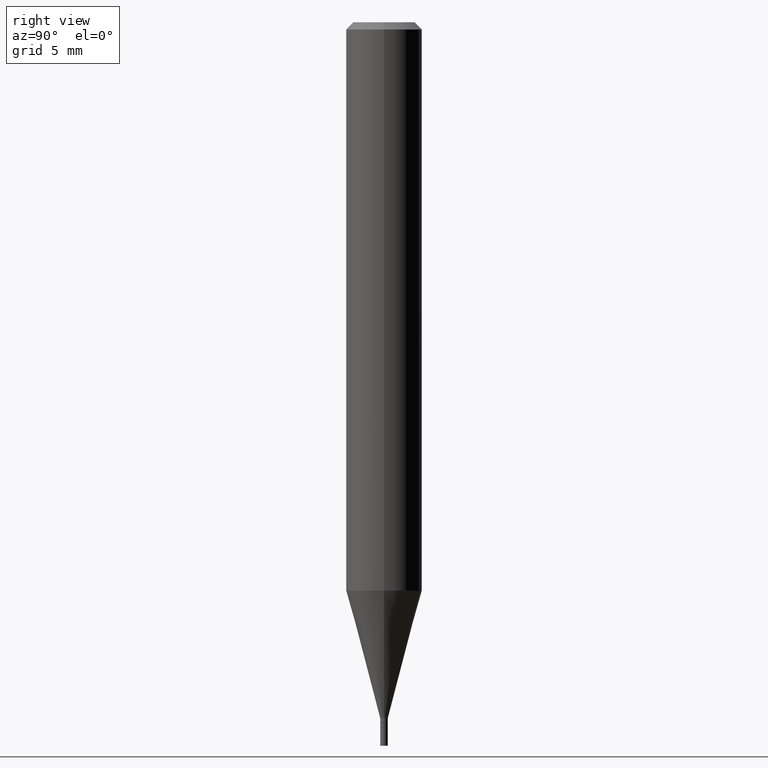
[diagram: clean part render]
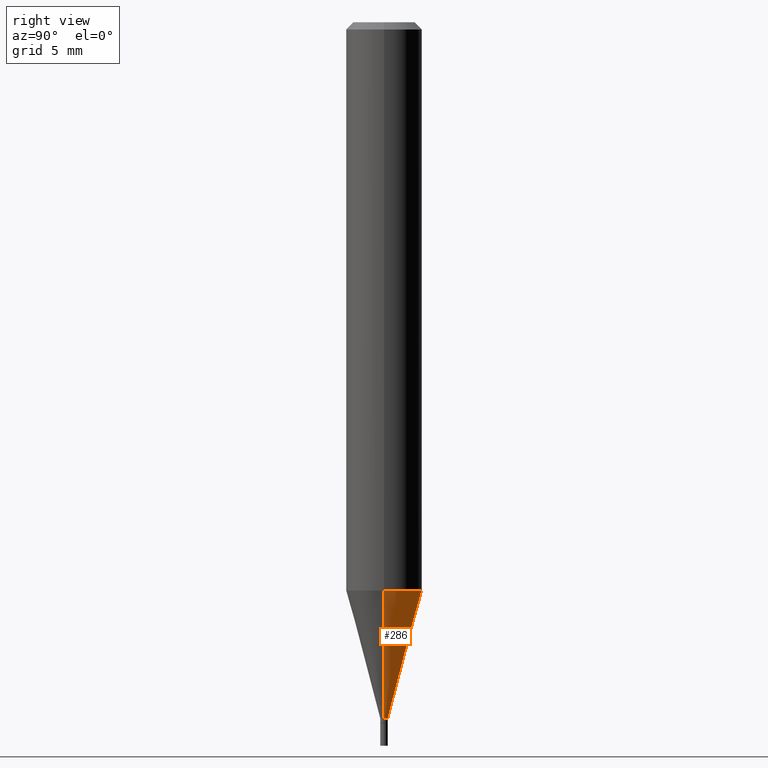
[diagram: same view with one face highlighted and labeled with its STEP entity id]
A machine part, right view. The second image highlights one B-rep face of the part: STEP entity #286.
In plain terms, the highlighted conical surface has half-angle 15 deg.
Its self-contained STEP definition (entity closure, byte-faithful):
#1 = CONICAL_SURFACE ( 'NONE', #385, 0.007849999999999921277, 0.2617993877991500740 ) ;
#9 = CARTESIAN_POINT ( 'NONE',  ( 0.007849999999999921277, -5.093023828970496460E-15, -1.443000000000000060 ) ) ;
#15 = CARTESIAN_POINT ( 'NONE',  ( 2.881734566564904705E-29, -4.114353222258558176E-15, -1.178397597743367164 ) ) ;
#28 = EDGE_CURVE ( 'NONE', #76, #365, #354, .T. ) ;
#33 = DIRECTION ( 'NONE',  ( -2.445468806185136597E-29, 3.491481338843145583E-15, 1.000000000000000000 ) ) ;
#37 = VERTEX_POINT ( 'NONE', #173 ) ;
#47 = EDGE_LOOP ( 'NONE', ( #330, #119, #75, #466 ) ) ;
#63 = DIRECTION ( 'NONE',  ( -0.2588190451025213501, 5.211531920934551042E-15, 0.9659258262890682012 ) ) ;
#66 = CARTESIAN_POINT ( 'NONE',  ( -0.007849999999999921277, -4.268615392520485900E-15, -1.443000000000000060 ) ) ;
#75 = ORIENTED_EDGE ( 'NONE', *, *, #176, .F. ) ;
#76 = VERTEX_POINT ( 'NONE', #66 ) ;
#81 = DIRECTION ( 'NONE',  ( 1.000000000000000000, -6.982962677686268288E-15, 0.000000000000000000 ) ) ;
#102 = CARTESIAN_POINT ( 'NONE',  ( 3.528811487325152432E-29, -5.038207571950659670E-15, -1.443000000000000060 ) ) ;
#119 = ORIENTED_EDGE ( 'NONE', *, *, #28, .T. ) ;
#147 = CARTESIAN_POINT ( 'NONE',  ( -0.07874999999999997280, -3.554800817847479374E-15, -1.178397597743367164 ) ) ;
#151 = CIRCLE ( 'NONE', #172, 0.007849999999999921277 ) ;
#165 = FACE_OUTER_BOUND ( 'NONE', #47, .T. ) ;
#172 = AXIS2_PLACEMENT_3D ( 'NONE', #102, #33, #271 ) ;
#173 = CARTESIAN_POINT ( 'NONE',  ( 0.07874999999999997280, -4.664261533126351521E-15, -1.178397597743367164 ) ) ;
#176 = EDGE_CURVE ( 'NONE', #37, #365, #352, .T. ) ;
#212 = CARTESIAN_POINT ( 'NONE',  ( -0.007849999999999921277, -4.982429967193492427E-15, -1.443000000000000060 ) ) ;
#221 = VERTEX_POINT ( 'NONE', #272 ) ;
#228 = VECTOR ( 'NONE', #63, 39.37007874015747433 ) ;
#232 = EDGE_CURVE ( 'NONE', #221, #37, #370, .T. ) ;
#233 = DIRECTION ( 'NONE',  ( 0.2588190451025213501, 1.565188264969621968E-15, 0.9659258262890682012 ) ) ;
#271 = DIRECTION ( 'NONE',  ( 1.000000000000000000, -6.982962677686273021E-15, 0.000000000000000000 ) ) ;
#272 = CARTESIAN_POINT ( 'NONE',  ( 0.007849999999999921277, -5.093023828970496460E-15, -1.443000000000000060 ) ) ;
#286 = ADVANCED_FACE ( 'NONE', ( #165 ), #1, .T. ) ;
#310 = CARTESIAN_POINT ( 'NONE',  ( 3.528811487325152432E-29, -5.038207571950659670E-15, -1.443000000000000060 ) ) ;
#330 = ORIENTED_EDGE ( 'NONE', *, *, #366, .T. ) ;
#352 = CIRCLE ( 'NONE', #460, 0.07875000000000000056 ) ;
#354 = LINE ( 'NONE', #212, #228 ) ;
#365 = VERTEX_POINT ( 'NONE', #147 ) ;
#366 = EDGE_CURVE ( 'NONE', #221, #76, #151, .T. ) ;
#370 = LINE ( 'NONE', #9, #377 ) ;
#377 = VECTOR ( 'NONE', #233, 39.37007874015747433 ) ;
#385 = AXIS2_PLACEMENT_3D ( 'NONE', #310, #422, #448 ) ;
#405 = DIRECTION ( 'NONE',  ( -2.445468806185136597E-29, 3.491481338843145583E-15, 1.000000000000000000 ) ) ;
#422 = DIRECTION ( 'NONE',  ( -2.445468806185136597E-29, 3.491481338843145583E-15, 1.000000000000000000 ) ) ;
#448 = DIRECTION ( 'NONE',  ( 1.000000000000000000, -6.982962677686273021E-15, 0.000000000000000000 ) ) ;
#460 = AXIS2_PLACEMENT_3D ( 'NONE', #15, #405, #81 ) ;
#466 = ORIENTED_EDGE ( 'NONE', *, *, #232, .F. ) ;